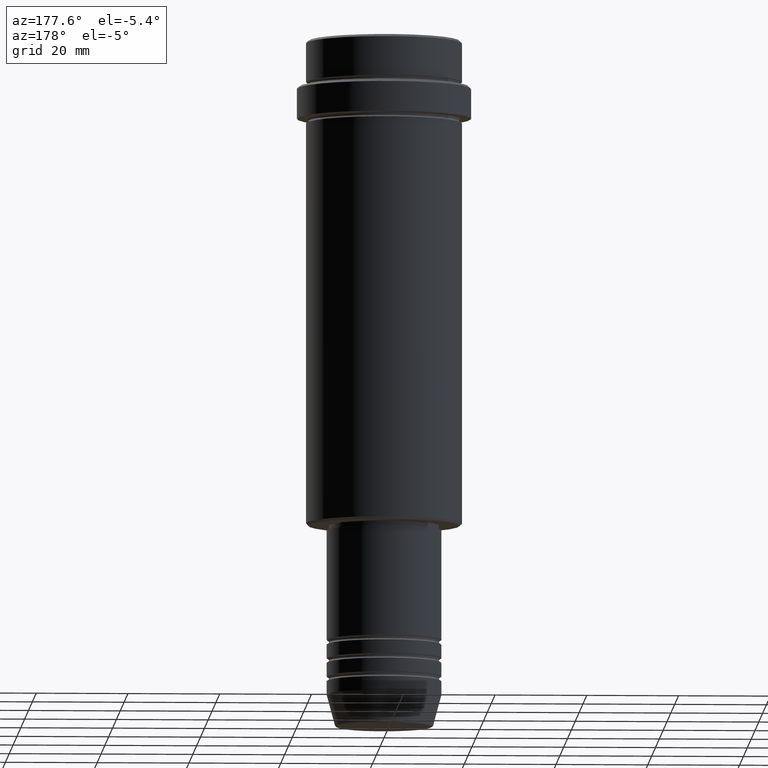
[diagram: clean part render]
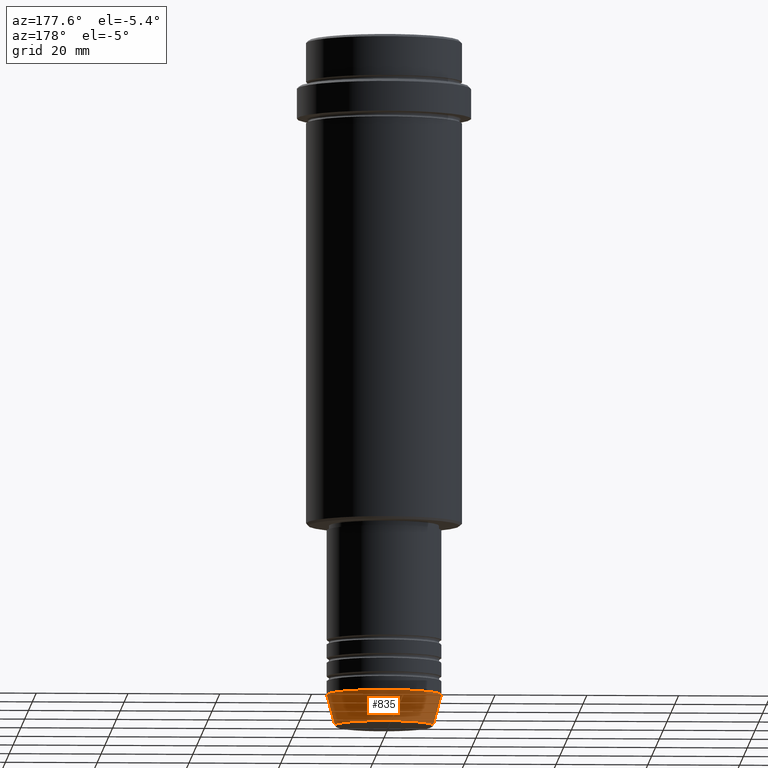
[diagram: same view with one face highlighted and labeled with its STEP entity id]
A machine part, auxiliary view. The second image highlights one B-rep face of the part: STEP entity #835.
In plain terms, the highlighted conical surface has half-angle 15 deg.
Its self-contained STEP definition (entity closure, byte-faithful):
#18 = LINE ( 'NONE', #444, #143 ) ;
#41 = AXIS2_PLACEMENT_3D ( 'NONE', #1222, #569, #47 ) ;
#47 = DIRECTION ( 'NONE',  ( 1.000000000000000000, 0.000000000000000000, 0.000000000000000000 ) ) ;
#76 = CONICAL_SURFACE ( 'NONE', #41, 12.50000000000000000, 0.2617993877991500740 ) ;
#141 = EDGE_CURVE ( 'NONE', #1330, #1151, #1230, .T. ) ;
#143 = VECTOR ( 'NONE', #882, 1000.000000000000000 ) ;
#146 = CARTESIAN_POINT ( 'NONE',  ( -12.50000000000000000, 1.530808498934191521E-15, -143.0000000000000284 ) ) ;
#172 = LINE ( 'NONE', #845, #595 ) ;
#192 = CARTESIAN_POINT ( 'NONE',  ( -10.72365507213718416, 1.422038742429750121E-15, -149.6294095225512990 ) ) ;
#225 = VERTEX_POINT ( 'NONE', #926 ) ;
#320 = EDGE_CURVE ( 'NONE', #225, #855, #1133, .T. ) ;
#379 = DIRECTION ( 'NONE',  ( -0.2588190451025213501, 3.169619151431772337E-17, 0.9659258262890680902 ) ) ;
#444 = CARTESIAN_POINT ( 'NONE',  ( 12.50000000000000000, 0.000000000000000000, -143.0000000000000284 ) ) ;
#450 = DIRECTION ( 'NONE',  ( -0.000000000000000000, -0.000000000000000000, 1.000000000000000000 ) ) ;
#459 = AXIS2_PLACEMENT_3D ( 'NONE', #560, #450, #974 ) ;
#560 = CARTESIAN_POINT ( 'NONE',  ( 0.000000000000000000, 0.000000000000000000, -143.0000000000000284 ) ) ;
#569 = DIRECTION ( 'NONE',  ( -0.000000000000000000, -0.000000000000000000, 1.000000000000000000 ) ) ;
#595 = VECTOR ( 'NONE', #379, 1000.000000000000000 ) ;
#685 = AXIS2_PLACEMENT_3D ( 'NONE', #1027, #801, #1243 ) ;
#709 = EDGE_LOOP ( 'NONE', ( #1149, #1015, #943, #789 ) ) ;
#789 = ORIENTED_EDGE ( 'NONE', *, *, #1120, .F. ) ;
#801 = DIRECTION ( 'NONE',  ( -0.000000000000000000, -0.000000000000000000, 1.000000000000000000 ) ) ;
#835 = ADVANCED_FACE ( 'NONE', ( #903 ), #76, .T. ) ;
#845 = CARTESIAN_POINT ( 'NONE',  ( -12.50000000000000000, 1.530808498934191521E-15, -143.0000000000000284 ) ) ;
#855 = VERTEX_POINT ( 'NONE', #146 ) ;
#882 = DIRECTION ( 'NONE',  ( 0.2588190451025213501, 0.000000000000000000, 0.9659258262890680902 ) ) ;
#901 = EDGE_CURVE ( 'NONE', #1151, #855, #172, .T. ) ;
#903 = FACE_OUTER_BOUND ( 'NONE', #709, .T. ) ;
#926 = CARTESIAN_POINT ( 'NONE',  ( 12.50000000000000000, 0.000000000000000000, -143.0000000000000284 ) ) ;
#943 = ORIENTED_EDGE ( 'NONE', *, *, #320, .F. ) ;
#974 = DIRECTION ( 'NONE',  ( 1.000000000000000000, 0.000000000000000000, 0.000000000000000000 ) ) ;
#1015 = ORIENTED_EDGE ( 'NONE', *, *, #901, .T. ) ;
#1027 = CARTESIAN_POINT ( 'NONE',  ( 0.000000000000000000, 0.000000000000000000, -149.6294095225512990 ) ) ;
#1120 = EDGE_CURVE ( 'NONE', #1330, #225, #18, .T. ) ;
#1133 = CIRCLE ( 'NONE', #459, 12.50000000000000000 ) ;
#1149 = ORIENTED_EDGE ( 'NONE', *, *, #141, .T. ) ;
#1151 = VERTEX_POINT ( 'NONE', #192 ) ;
#1193 = CARTESIAN_POINT ( 'NONE',  ( 10.72365507213718416, 0.000000000000000000, -149.6294095225512990 ) ) ;
#1222 = CARTESIAN_POINT ( 'NONE',  ( 0.000000000000000000, 0.000000000000000000, -143.0000000000000284 ) ) ;
#1230 = CIRCLE ( 'NONE', #685, 10.72365507213718416 ) ;
#1243 = DIRECTION ( 'NONE',  ( 1.000000000000000000, 0.000000000000000000, 0.000000000000000000 ) ) ;
#1330 = VERTEX_POINT ( 'NONE', #1193 ) ;